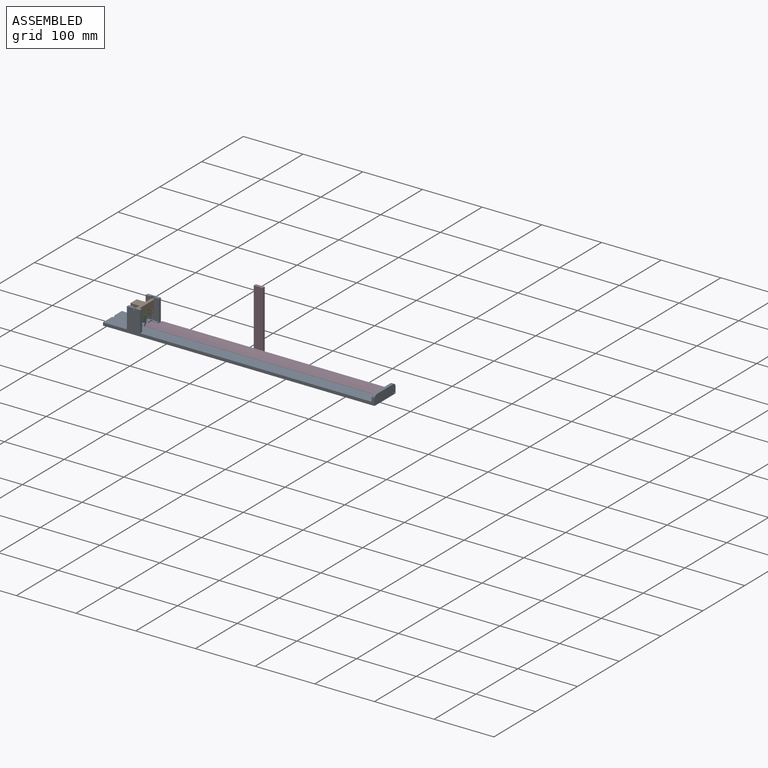
[diagram: assembled view]
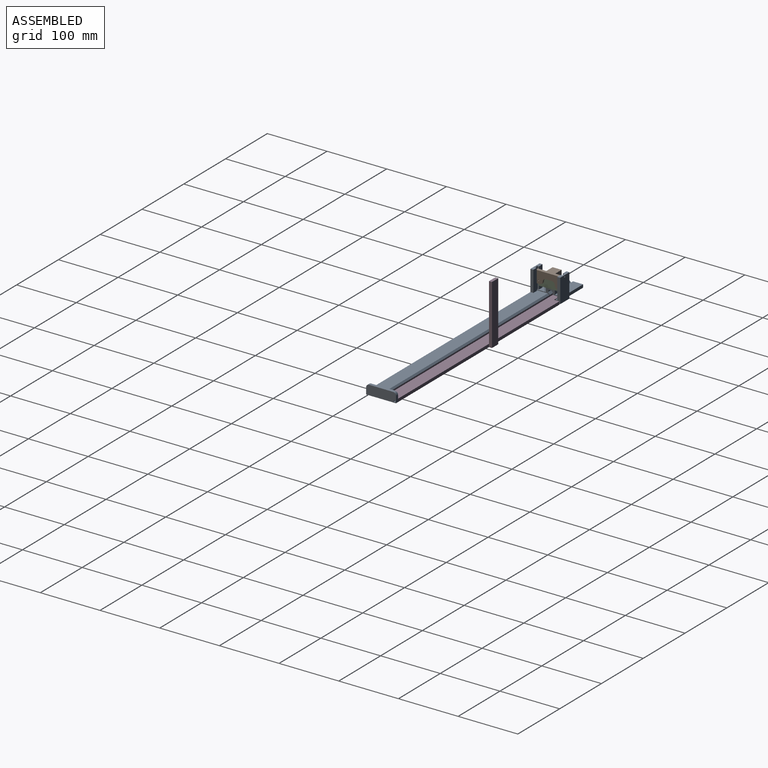
[diagram: assembled view, second angle]
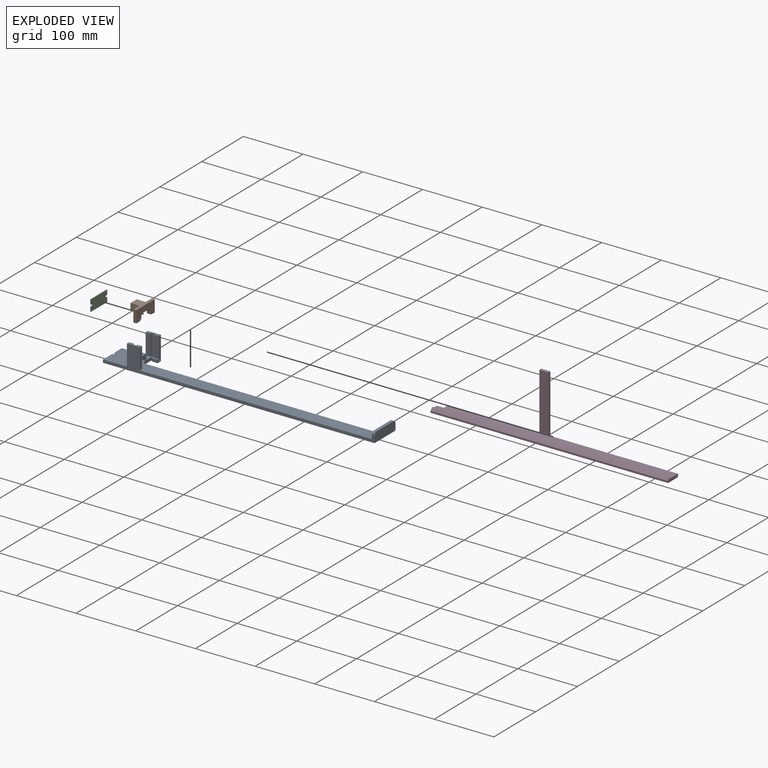
[diagram: exploded view]
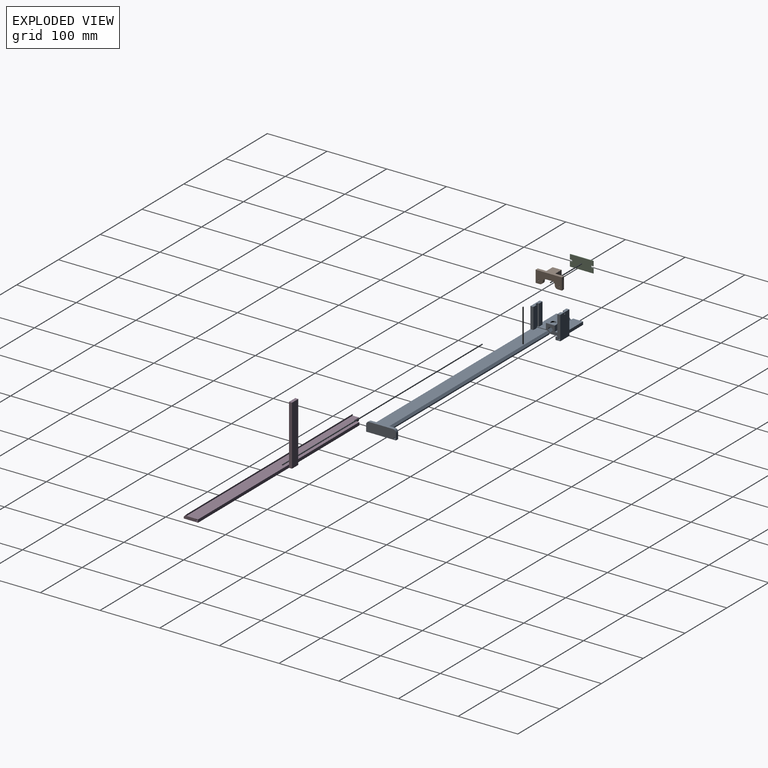
[diagram: exploded view, second angle]
ASSEMBLY  parts=4 mates=3
PART A: 56 faces, bbox 455x50x40 mm
  f0: plane 45x5mm, normal (-1,0,0), area 216mm2, adj f9,f10,f11,f12,f16,f22,f34
  f1: cylinder r=4mm len=19mm, axis (1,0,0), area 238.8mm2, adj f6,f10,f11,f46
  f2: cylinder r=7.5mm len=20mm, axis (1,0,0), area 157.9mm2, adj f6,f9,f12,f44,f50,f52,f53
  f3: plane 35x8mm, normal (0,-1,0), area 280mm2, adj f5,f19,f20,f40
  f4: plane 35x8mm, normal (0,1,0), area 280mm2, adj f15,f24,f26,f41
  f5: plane 22x5mm, normal (0,0,1), area 96.3mm2, adj f3,f13,f18,f20,f23,f39,f40,f42
  f6: plane 45x14.64mm, normal (1,0,0), area 324.9mm2, adj f1,f2,f9,f10,f11,f12,f16,f33
  f7: plane 22.5x5mm, normal (-1,0,0), area 108mm2, adj f15,f16,f17,f36,f37
  f8: plane 5.5x5mm, normal (-1,0,0), area 24mm2, adj f16,f19,f33,f35,f38,f39
  f9: plane 50x22mm, normal (0,0,1), area 965.8mm2, adj f0,f2,f6,f11,f14,f22,f25,f37
  f10: plane 50x4mm, normal (0,-0.71,0.71), area 239mm2, adj f0,f1,f6,f11,f12,f45
  f11: plane 50x4mm, normal (0,0.71,0.71), area 239mm2, adj f0,f1,f6,f9,f10,f47
  f12: plane 50x19.5mm, normal (0,0,1), area 765.8mm2, adj f0,f2,f6,f10,f13,f34,f39,f42
  f13: plane 35x8.5mm, normal (0,-1,0), area 297.5mm2, adj f5,f12,f23,f42
  f14: plane 35x8.5mm, normal (0,1,0), area 297.5mm2, adj f9,f24,f25,f43
  f15: plane 398x22mm, normal (0,0,1), area 8711mm2, adj f4,f7,f17,f22,f26,f27,f37,f41
  f16: plane 455x50mm, normal (0,0,-1), area 12590mm2, adj f0,f6,f7,f8,f18,f20,f21,f22
  f17: plane 398x3mm, normal (0,0.71,0.71), area 1688.6mm2, adj f7,f15,f27,f36
  f18: plane 40x22mm, normal (0,1,0), area 876.9mm2, adj f5,f16,f20,f23,f48
  f19: plane 10x5.5mm, normal (0,0,1), area 35mm2, adj f3,f8,f20,f35,f39,f40
  f20: plane 40x8mm, normal (1,0,0), area 207.9mm2, adj f3,f5,f16,f18,f19,f33,f35
  f21: plane 11x5mm, normal (0,1,0), area 55mm2, adj f16,f27,f29,f30
  f22: plane 455x40mm, normal (0,-1,0), area 3071.9mm2, adj f0,f9,f15,f16,f24,f25,f26,f27
  f23: plane 40x5mm, normal (-1,0,0), area 192.9mm2, adj f5,f13,f16,f18,f33,f34
  f24: plane 22x5mm, normal (0,0,1), area 96.3mm2, adj f4,f14,f22,f25,f26,f37,f41,f43
  f25: plane 35x5mm, normal (-1,0,0), area 175mm2, adj f9,f14,f22,f24
  f26: plane 35x5mm, normal (1,0,0), area 175mm2, adj f4,f15,f22,f24
  f27: plane 50x16mm, normal (-1,0,0), area 661.7mm2, adj f15,f16,f17,f21,f22,f28,f30,f31
  f28: plane 40x5mm, normal (0,0,1), area 200mm2, adj f27,f29,f30,f31
  f29: plane 50x16mm, normal (1,0,0), area 782.2mm2, adj f16,f21,f22,f28,f30,f31,f32
  f30: cylinder r=5mm len=5mm, axis (1,0,0), area 39.3mm2, adj f21,f27,f28,f29
  f31: cylinder r=5mm len=5mm, axis (-1,0,0), area 39.3mm2, adj f22,f27,f28,f29
  f32: cylinder r=1.5mm len=5mm, axis (1,0,0), area 47.1mm2, adj f27,f29
  f33: cylinder r=1.5mm len=22mm, axis (1,0,0), area 197.9mm2, adj f6,f8,f20,f23,f38,f39
  f34: plane 40x5mm, normal (0,1,0), area 200mm2, adj f0,f12,f16,f23
  f35: plane 10x5mm, normal (0,-1,0), area 50mm2, adj f8,f16,f19,f20
  f36: plane 398x2mm, normal (0,1,0), area 796mm2, adj f7,f16,f17,f27
  f37: plane 40x5.5mm, normal (0,1,0), area 199.4mm2, adj f6,f7,f9,f15,f16,f24,f41,f43
  f38: plane 2x1mm, normal (0,-1,0), area 2mm2, adj f6,f8,f16,f33
  f39: plane 36x5.5mm, normal (0,-1,0), area 191.4mm2, adj f5,f6,f8,f12,f19,f33,f40,f42
  f40: plane 35x2.5mm, normal (-1,0,0), area 87.5mm2, adj f3,f5,f19,f39
  f41: plane 35x2.5mm, normal (-1,0,0), area 87.5mm2, adj f4,f15,f24,f37
  f42: plane 35x2.5mm, normal (1,0,0), area 87.5mm2, adj f5,f12,f13,f39
  f43: plane 35x2.5mm, normal (1,0,0), area 87.5mm2, adj f9,f14,f24,f37
  f44: plane 15x8.5mm, normal (-1,0,0), area 54.4mm2, adj f2,f9,f12,f45,f46,f47
  f45: plane 1.98x1mm, normal (-0.71,-0.5,0.5), area 1.6mm2, adj f10,f12,f44,f46
  f46: cone r=5mm half-angle=45deg, axis (-1,0,0), area 20.6mm2, adj f1,f44,f45,f47
  f47: plane 1.98x1mm, normal (-0.71,0.5,0.5), area 1.6mm2, adj f9,f11,f44,f46
  f48: cylinder r=1mm len=2.5mm, axis (0,1,0), area 15.7mm2, adj f18,f39
  f49: cylinder r=1mm len=2.5mm, axis (0,1,0), area 15.7mm2, adj f22,f37
  f50: plane 15x8.64mm, normal (0,1,0), area 129.6mm2, adj f2,f6,f51,f53
  f51: plane 15x15mm, normal (0,0,1), area 168.3mm2, adj f6,f50,f52,f53,f54
  f52: plane 15x8.64mm, normal (0,-1,0), area 129.6mm2, adj f2,f6,f51,f53
  f53: plane 15x8.64mm, normal (-1,0,0), area 41.3mm2, adj f2,f50,f51,f52
  f54: cylinder r=4.25mm len=8.5mm, axis (0,0,1), area 53.4mm2, adj f51,f55
  f55: plane 8.5x8.5mm, normal (0,0,1), area 56.7mm2, adj f54
PART B: 32 faces, bbox 20x44x20 mm
  f0: plane 20x17mm, normal (-1,0,0), area 261.9mm2, adj f2,f8,f11,f14,f17,f21,f26,f27
  f1: plane 20x17mm, normal (-1,0,0), area 261.9mm2, adj f7,f10,f11,f13,f17,f22,f25,f28
  f2: plane 7x0.9mm, normal (0,0,-1), area 6.3mm2, adj f0,f6,f8,f21
  f3: plane 7x2.9mm, normal (0,0,-1), area 20.3mm2, adj f4,f5,f8,f20
  f4: plane 44x20mm, normal (1,0,0), area 673.7mm2, adj f3,f8,f9,f10,f11,f15,f16,f18
  f5: plane 44x15mm, normal (-1,0,0), area 453.7mm2, adj f3,f8,f9,f10,f12,f15,f16,f18
  f6: plane 44x15mm, normal (1,0,0), area 453.7mm2, adj f2,f7,f8,f10,f12,f13,f14,f17
  f7: plane 7x0.9mm, normal (0,0,-1), area 6.3mm2, adj f1,f6,f10,f22
  f8: plane 20x5mm, normal (0,-1,0), area 82mm2, adj f0,f2,f3,f4,f5,f6,f11,f12
  f9: plane 7x2.9mm, normal (0,0,-1), area 20.3mm2, adj f4,f5,f10,f19
  f10: plane 20x5mm, normal (0,1,0), area 82mm2, adj f1,f4,f5,f6,f7,f9,f11,f12
  f11: plane 44x20mm, normal (0,0,1), area 445mm2, adj f0,f1,f4,f8,f10,f27,f28,f29
  f12: plane 44x1.2mm, normal (0,0,-1), area 52.8mm2, adj f5,f6,f8,f10
  f13: cylinder r=1mm len=2mm, axis (1,0,0), area 5.7mm2, adj f1,f6
  f14: cylinder r=1mm len=2mm, axis (1,0,0), area 5.7mm2, adj f0,f6
  f15: cylinder r=1mm len=2.9mm, axis (1,0,0), area 18.2mm2, adj f4,f5
  f16: cylinder r=1mm len=2.9mm, axis (1,0,0), area 18.2mm2, adj f4,f5
  f17: plane 15.9x15mm, normal (0,0,-1), area 177.3mm2, adj f0,f1,f6,f25,f26,f27,f28,f29
  f18: plane 10x2.9mm, normal (0,0,-1), area 29mm2, adj f4,f5,f23,f24
  f19: cylinder r=5mm len=5mm, axis (1,0,0), area 22.8mm2, adj f4,f5,f9,f23
  f20: cylinder r=5mm len=5mm, axis (1,0,0), area 22.8mm2, adj f3,f4,f5,f24
  f21: cylinder r=5mm len=5mm, axis (1,0,0), area 7.1mm2, adj f0,f2,f6,f26
  f22: cylinder r=5mm len=5mm, axis (1,0,0), area 7.1mm2, adj f1,f6,f7,f25
  f23: cylinder r=5mm len=5mm, axis (-1,0,0), area 22.8mm2, adj f4,f5,f18,f19
  f24: cylinder r=5mm len=5mm, axis (-1,0,0), area 22.8mm2, adj f4,f5,f18,f20
  f25: cylinder r=5mm len=5mm, axis (-1,0,0), area 7.1mm2, adj f1,f6,f17,f22
  f26: cylinder r=5mm len=5mm, axis (-1,0,0), area 7.1mm2, adj f0,f6,f17,f21
  f27: plane 15x10mm, normal (0,-1,0), area 150mm2, adj f0,f11,f17,f29
  f28: plane 15x10mm, normal (0,1,0), area 150mm2, adj f1,f11,f17,f29
  f29: plane 15x10mm, normal (-1,0,0), area 150mm2, adj f11,f17,f27,f28
  f30: cylinder r=4.25mm len=8.5mm, axis (0,0,-1), area 80.1mm2, adj f17,f31
  f31: plane 8.5x8.5mm, normal (0,0,-1), area 56.7mm2, adj f30
PART C: 14 faces, bbox 39x1.2x18.9 mm
  f0: plane 7.93x1.15mm, normal (1,0,0), area 9.1mm2, adj f1,f5,f7,f13
  f1: plane 39x18.85mm, normal (0,-1,0), area 712.7mm2, adj f0,f2,f3,f4,f5,f6,f8,f9
  f2: plane 7.93x1.15mm, normal (-1,0,0), area 9.1mm2, adj f1,f5,f7,f9
  f3: plane 39x1.15mm, normal (0,0,-1), area 44.9mm2, adj f1,f4,f6,f7
  f4: plane 7.93x1.15mm, normal (1,0,0), area 9.1mm2, adj f1,f3,f7,f12
  f5: plane 39x1.15mm, normal (0,0,1), area 44.9mm2, adj f0,f1,f2,f7
  f6: plane 7.93x1.15mm, normal (-1,0,0), area 9.1mm2, adj f1,f3,f7,f10
  f7: plane 39x18.85mm, normal (0,1,0), area 712.7mm2, adj f0,f2,f3,f4,f5,f6,f8,f9
  f8: cylinder r=1.5mm len=3mm, axis (0,-1,0), area 5.4mm2, adj f1,f7,f9,f10
  f9: plane 2.57x1.15mm, normal (0,0,-1), area 2.9mm2, adj f1,f2,f7,f8
  f10: plane 2.57x1.15mm, normal (0,0,1), area 2.9mm2, adj f1,f6,f7,f8
  f11: cylinder r=1.5mm len=3mm, axis (0,-1,0), area 5.4mm2, adj f1,f7,f12,f13
  f12: plane 2.57x1.15mm, normal (0,0,1), area 2.9mm2, adj f1,f4,f7,f11
  f13: plane 2.57x1.15mm, normal (0,0,-1), area 2.9mm2, adj f0,f1,f7,f11
PART D: 17 faces, bbox 398x29x100 mm
  f0: plane 153.5x5mm, normal (0,1,0), area 767.5mm2, adj f3,f4,f11,f15
  f1: cylinder r=1.5mm len=386mm, axis (1,0,0), area 3638mm2, adj f8,f15
  f2: plane 217.5x5mm, normal (0,1,0), area 1087.5mm2, adj f3,f4,f8,f10
  f3: plane 398x29mm, normal (0,0,-1), area 9519mm2, adj f0,f2,f7,f8,f10,f11,f13,f14
  f4: plane 398x19.57mm, normal (0,0,1), area 7680.3mm2, adj f0,f2,f5,f8,f9,f14,f15,f16
  f5: plane 398x2.43mm, normal (0,1,0), area 967.7mm2, adj f4,f6,f8,f16
  f6: plane 398x4.43mm, normal (0,-0.71,0.71), area 2494.3mm2, adj f5,f7,f8,f16
  f7: plane 398x3mm, normal (0,-1,0), area 1194mm2, adj f3,f6,f8,f16
  f8: plane 24x7.43mm, normal (1,0,0), area 113.9mm2, adj f1,f2,f3,f4,f5,f6,f7
  f9: plane 95x15mm, normal (0,-1,0), area 1425mm2, adj f4,f10,f11,f12
  f10: plane 100x5mm, normal (1,0,0), area 500mm2, adj f2,f3,f9,f12,f13
  f11: plane 100x5mm, normal (-1,0,0), area 500mm2, adj f0,f3,f9,f12,f13
  f12: plane 15x5mm, normal (0,0,1), area 75mm2, adj f9,f10,f11,f13
  f13: plane 100x15mm, normal (0,1,0), area 1500mm2, adj f3,f10,f11,f12
  f14: plane 12x5mm, normal (0,1,0), area 60mm2, adj f3,f4,f15,f16
  f15: plane 9x5mm, normal (-1,0,0), area 37.9mm2, adj f0,f1,f3,f4,f14
  f16: plane 15x7.43mm, normal (-1,0,0), area 76mm2, adj f3,f4,f5,f6,f7,f14
PLACE A t=(-2.5,0,-17.95)mm fixed
PLACE B t=(-178.75,0,8.55)mm
PLACE C rot(axis=(0.71,0.71,0),180deg) t=(-176.7,0.31,3.55)mm
PLACE D t=(-2.5,0,-17.95)mm
MATE fastened C.f11 <-> B.f13  axis (-1,0,0) through (-177.85,17.25,3.55)mm
MATE revolute D.f1 <-> A.f32  axis (1,0,0) through (222.5,22.5,-15.45)mm
MATE slider B.f11 <-> A.f24  axis (0,0,1) through (-178.75,-22,18.55)mm
